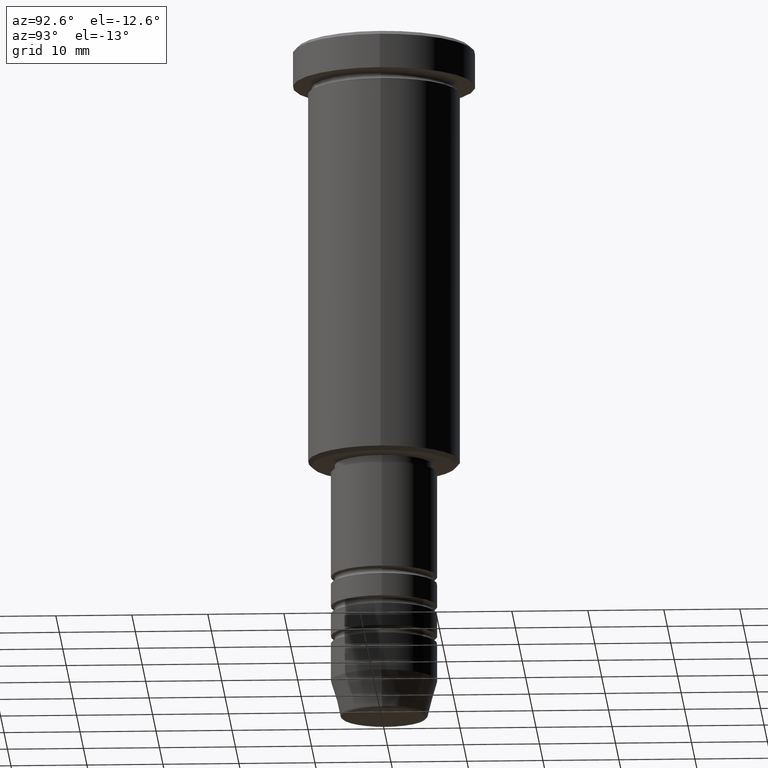
[diagram: clean part render]
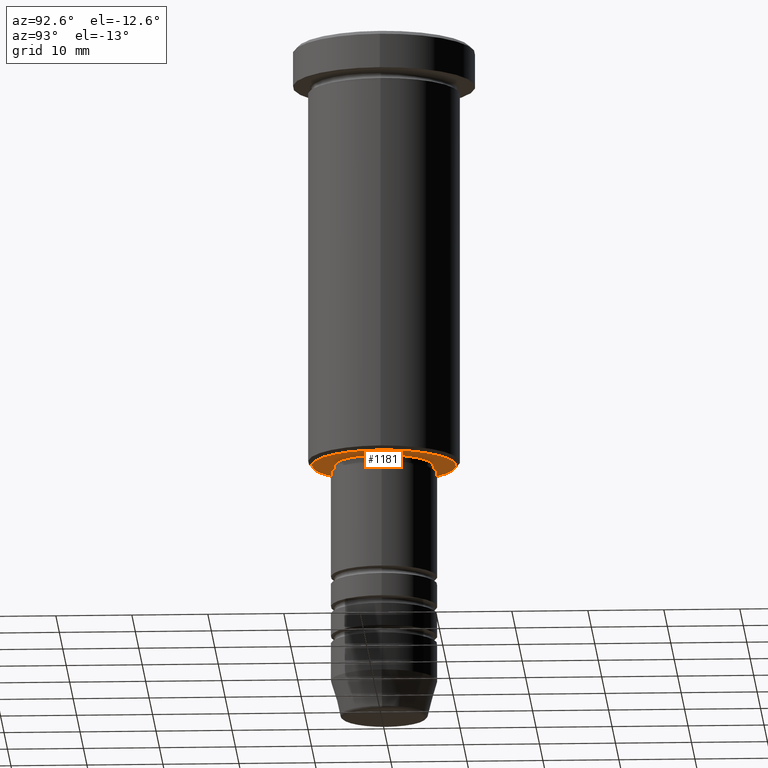
[diagram: same view with one face highlighted and labeled with its STEP entity id]
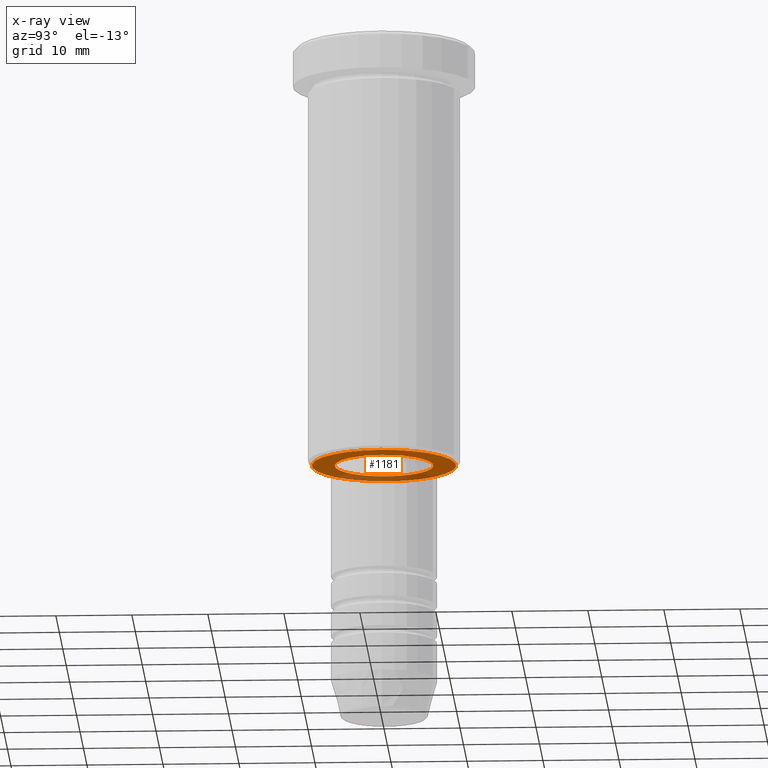
[diagram: x-ray of the same camera — body ghosted, the highlighted face saturated]
A machine part, auxiliary view. The second image highlights one B-rep face of the part: STEP entity #1181.
The next image is the same camera in x-ray: the body ghosted, the highlighted face saturated — about 24% of this face is hidden behind the body in this view.
In plain terms, the highlighted planar face has unit normal (0, 0, -1).
Its self-contained STEP definition (entity closure, byte-faithful):
#1 = CARTESIAN_POINT ( 'NONE',  ( 9.499999999999980460, 0.000000000000000000, -56.00000000000000000 ) ) ;
#6 = EDGE_CURVE ( 'NONE', #873, #568, #169, .T. ) ;
#7 = DIRECTION ( 'NONE',  ( 0.000000000000000000, 0.000000000000000000, -1.000000000000000000 ) ) ;
#36 = EDGE_LOOP ( 'NONE', ( #492, #1044 ) ) ;
#54 = DIRECTION ( 'NONE',  ( 1.000000000000000000, 0.000000000000000000, 0.000000000000000000 ) ) ;
#75 = DIRECTION ( 'NONE',  ( 0.000000000000000000, 0.000000000000000000, -1.000000000000000000 ) ) ;
#82 = ORIENTED_EDGE ( 'NONE', *, *, #829, .T. ) ;
#133 = AXIS2_PLACEMENT_3D ( 'NONE', #811, #75, #888 ) ;
#169 = CIRCLE ( 'NONE', #931, 6.500000000000000000 ) ;
#173 = CIRCLE ( 'NONE', #420, 6.500000000000000000 ) ;
#178 = CARTESIAN_POINT ( 'NONE',  ( 0.000000000000000000, 9.999999999999998224, -56.00000000000000000 ) ) ;
#209 = EDGE_LOOP ( 'NONE', ( #82, #596 ) ) ;
#245 = CARTESIAN_POINT ( 'NONE',  ( -6.500000000000000000, 7.960204194457795477E-16, -56.00000000000000000 ) ) ;
#361 = CIRCLE ( 'NONE', #722, 9.499999999999980460 ) ;
#385 = CARTESIAN_POINT ( 'NONE',  ( 0.000000000000000000, 0.000000000000000000, -56.00000000000000000 ) ) ;
#399 = CIRCLE ( 'NONE', #133, 9.499999999999980460 ) ;
#420 = AXIS2_PLACEMENT_3D ( 'NONE', #877, #693, #54 ) ;
#423 = FACE_OUTER_BOUND ( 'NONE', #209, .T. ) ;
#485 = CARTESIAN_POINT ( 'NONE',  ( 6.500000000000000000, 0.000000000000000000, -56.00000000000000000 ) ) ;
#492 = ORIENTED_EDGE ( 'NONE', *, *, #591, .T. ) ;
#504 = VERTEX_POINT ( 'NONE', #1 ) ;
#530 = DIRECTION ( 'NONE',  ( -1.000000000000000000, 0.000000000000000000, -0.000000000000000000 ) ) ;
#558 = DIRECTION ( 'NONE',  ( -0.000000000000000000, -0.000000000000000000, 1.000000000000000000 ) ) ;
#560 = DIRECTION ( 'NONE',  ( -1.000000000000000000, 0.000000000000000000, 0.000000000000000000 ) ) ;
#563 = DIRECTION ( 'NONE',  ( 1.000000000000000000, 0.000000000000000000, 0.000000000000000000 ) ) ;
#568 = VERTEX_POINT ( 'NONE', #485 ) ;
#591 = EDGE_CURVE ( 'NONE', #568, #873, #173, .T. ) ;
#596 = ORIENTED_EDGE ( 'NONE', *, *, #993, .T. ) ;
#603 = PLANE ( 'NONE',  #1168 ) ;
#656 = CARTESIAN_POINT ( 'NONE',  ( 0.000000000000000000, 0.000000000000000000, -56.00000000000000000 ) ) ;
#692 = FACE_BOUND ( 'NONE', #36, .T. ) ;
#693 = DIRECTION ( 'NONE',  ( -0.000000000000000000, -0.000000000000000000, 1.000000000000000000 ) ) ;
#722 = AXIS2_PLACEMENT_3D ( 'NONE', #656, #7, #560 ) ;
#728 = VERTEX_POINT ( 'NONE', #1069 ) ;
#811 = CARTESIAN_POINT ( 'NONE',  ( 0.000000000000000000, 0.000000000000000000, -56.00000000000000000 ) ) ;
#829 = EDGE_CURVE ( 'NONE', #504, #728, #399, .T. ) ;
#873 = VERTEX_POINT ( 'NONE', #245 ) ;
#877 = CARTESIAN_POINT ( 'NONE',  ( 0.000000000000000000, 0.000000000000000000, -56.00000000000000000 ) ) ;
#888 = DIRECTION ( 'NONE',  ( -1.000000000000000000, 0.000000000000000000, 0.000000000000000000 ) ) ;
#891 = DIRECTION ( 'NONE',  ( 0.000000000000000000, 0.000000000000000000, -1.000000000000000000 ) ) ;
#931 = AXIS2_PLACEMENT_3D ( 'NONE', #385, #558, #563 ) ;
#993 = EDGE_CURVE ( 'NONE', #728, #504, #361, .T. ) ;
#1044 = ORIENTED_EDGE ( 'NONE', *, *, #6, .T. ) ;
#1069 = CARTESIAN_POINT ( 'NONE',  ( -9.499999999999980460, 1.194030629168668089E-15, -56.00000000000000000 ) ) ;
#1168 = AXIS2_PLACEMENT_3D ( 'NONE', #178, #891, #530 ) ;
#1181 = ADVANCED_FACE ( 'NONE', ( #423, #692 ), #603, .T. ) ;